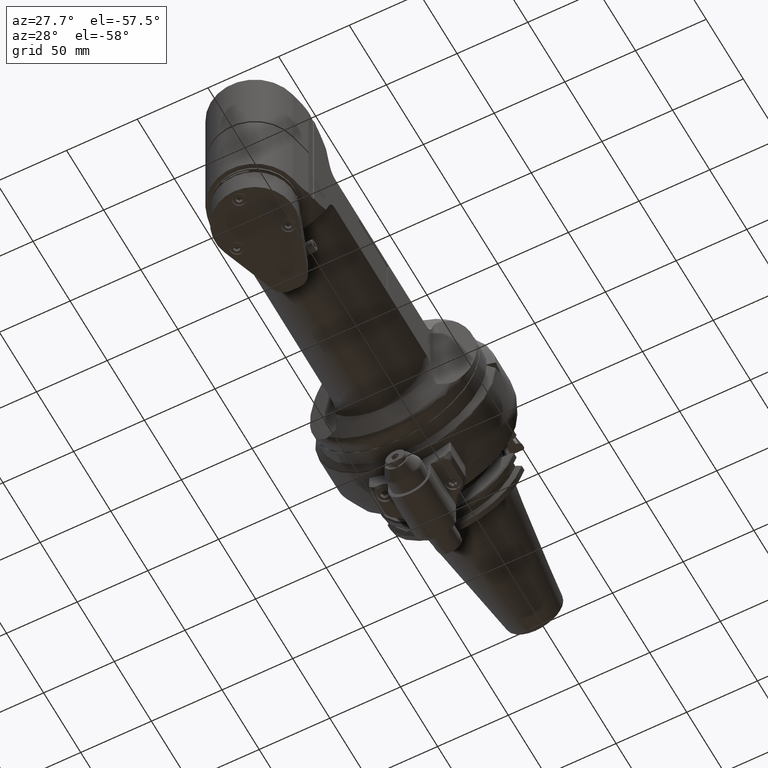
[diagram: clean part render]
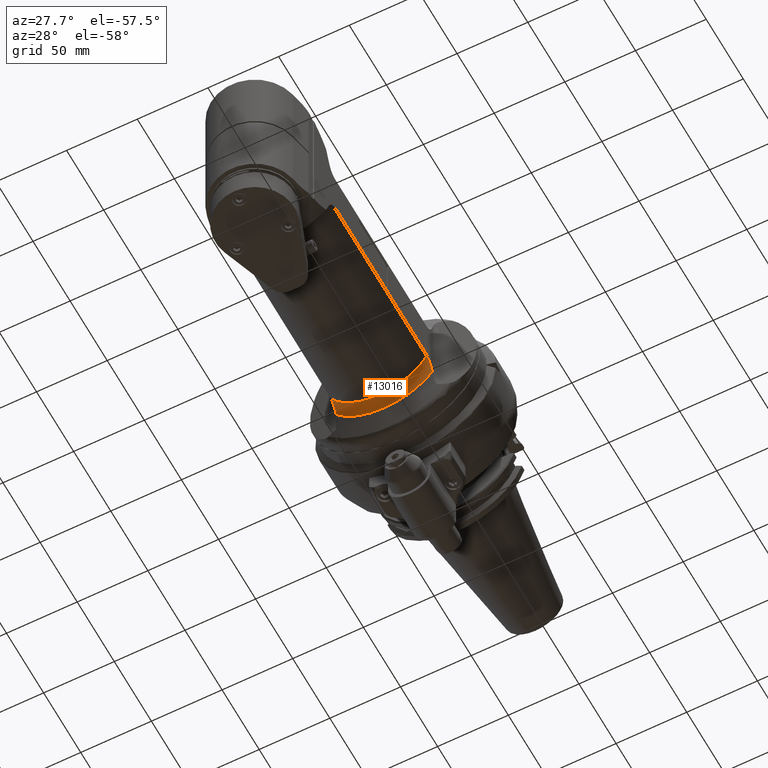
[diagram: same view with one face highlighted and labeled with its STEP entity id]
A machine part, auxiliary view. The second image highlights one B-rep face of the part: STEP entity #13016.
In plain terms, the highlighted toroidal blend (fillet) surface has major radius 46 mm and minor (blend) radius 8 mm.
Its self-contained STEP definition (entity closure, byte-faithful):
#371=B_SPLINE_CURVE_WITH_KNOTS('',3,(#35774,#35775,#35776,#35777,#35778,
#35779,#35780,#35781,#35782,#35783,#35784,#35785,#35786,#35787,#35788,#35789),
 .UNSPECIFIED.,.F.,.F.,(4,2,2,2,2,2,2,4),(1.92235565666624,1.94011054685315,
2.19299586582667,2.4458811848002,2.63271120212388,2.81954121944757,2.94693218780985,
3.05573251034379),.UNSPECIFIED.);
#372=B_SPLINE_CURVE_WITH_KNOTS('',3,(#35994,#35995,#35996,#35997,#35998,
#35999,#36000,#36001,#36002,#36003,#36004,#36005,#36006,#36007,#36008,#36009),
 .UNSPECIFIED.,.F.,.F.,(4,2,2,2,2,2,2,4),(-3.05573251034379,-2.94693218780985,
-2.81954121944757,-2.63271120212388,-2.4458811848002,-2.19299586582667,
-1.94011054685314,-1.92235565666624),.UNSPECIFIED.);
#671=TOROIDAL_SURFACE('',#14230,46.,8.);
#1176=CIRCLE('',#14228,38.);
#1178=CIRCLE('',#14231,42.61905390607);
#1933=FACE_OUTER_BOUND('',#2774,.T.);
#2774=EDGE_LOOP('',(#10478,#10479,#10480,#10481));
#5740=VERTEX_POINT('',#35628);
#5763=VERTEX_POINT('',#35770);
#5820=VERTEX_POINT('',#35986);
#5822=VERTEX_POINT('',#35992);
#7377=EDGE_CURVE('',#5763,#5740,#371,.T.);
#7466=EDGE_CURVE('',#5740,#5820,#1176,.T.);
#7469=EDGE_CURVE('',#5763,#5822,#1178,.T.);
#7470=EDGE_CURVE('',#5820,#5822,#372,.T.);
#10478=ORIENTED_EDGE('',*,*,#7466,.F.);
#10479=ORIENTED_EDGE('',*,*,#7377,.F.);
#10480=ORIENTED_EDGE('',*,*,#7469,.T.);
#10481=ORIENTED_EDGE('',*,*,#7470,.F.);
#13016=ADVANCED_FACE('',(#1933),#671,.F.);
#14228=AXIS2_PLACEMENT_3D('',#35987,#17005,#17006);
#14230=AXIS2_PLACEMENT_3D('',#35991,#17010,#17011);
#14231=AXIS2_PLACEMENT_3D('',#35993,#17012,#17013);
#17005=DIRECTION('center_axis',(1.,0.,0.));
#17006=DIRECTION('ref_axis',(0.,0.44659375653888,-0.894736842105259));
#17010=DIRECTION('center_axis',(-1.,0.,0.));
#17011=DIRECTION('ref_axis',(0.,1.,2.85362011798185E-16));
#17012=DIRECTION('center_axis',(1.,0.,0.));
#17013=DIRECTION('ref_axis',(0.,0.602968169276407,-0.79776524544471));
#35628=CARTESIAN_POINT('',(210.9521198437,16.97056274848,-34.));
#35770=CARTESIAN_POINT('',(203.7016575474,25.69793291004,-34.));
#35774=CARTESIAN_POINT('Ctrl Pts',(203.701657547406,25.6979329100417,-34.));
#35775=CARTESIAN_POINT('Ctrl Pts',(203.717880355221,25.6402351319456,-34.));
#35776=CARTESIAN_POINT('Ctrl Pts',(203.734255450455,25.5829564978224,-34.));
#35777=CARTESIAN_POINT('Ctrl Pts',(203.985917934121,24.7166356546218,-34.));
#35778=CARTESIAN_POINT('Ctrl Pts',(204.295790524545,23.8439416682403,-34.));
#35779=CARTESIAN_POINT('Ctrl Pts',(205.041213079383,22.1555959983674,-34.));
#35780=CARTESIAN_POINT('Ctrl Pts',(205.477048966678,21.3400705673322,-34.));
#35781=CARTESIAN_POINT('Ctrl Pts',(206.270623996535,20.1077689382487,-34.));
#35782=CARTESIAN_POINT('Ctrl Pts',(206.674401664489,19.5553043516449,-34.));
#35783=CARTESIAN_POINT('Ctrl Pts',(207.580207465488,18.5465996865152,-34.));
#35784=CARTESIAN_POINT('Ctrl Pts',(208.083318701176,18.0913327478181,-34.));
#35785=CARTESIAN_POINT('Ctrl Pts',(208.95582872201,17.5118675579488,-34.));
#35786=CARTESIAN_POINT('Ctrl Pts',(209.410012247592,17.2808423077824,-34.));
#35787=CARTESIAN_POINT('Ctrl Pts',(210.160088938658,17.041608064786,-34.));
#35788=CARTESIAN_POINT('Ctrl Pts',(210.58945210192,16.9705627484771,-34.));
#35789=CARTESIAN_POINT('Ctrl Pts',(210.9521198437,16.9705627484771,-34.));
#35986=CARTESIAN_POINT('',(210.9521198437,16.97056274848,34.));
#35987=CARTESIAN_POINT('Origin',(210.9521198437,0.,0.));
#35991=CARTESIAN_POINT('Origin',(210.9521198437,0.,0.));
#35992=CARTESIAN_POINT('',(203.7016575474,25.69793291004,34.));
#35993=CARTESIAN_POINT('Origin',(203.7016575474,0.,0.));
#35994=CARTESIAN_POINT('Ctrl Pts',(210.9521198437,16.9705627484771,34.));
#35995=CARTESIAN_POINT('Ctrl Pts',(210.58945210192,16.9705627484771,34.));
#35996=CARTESIAN_POINT('Ctrl Pts',(210.160088938658,17.041608064786,34.));
#35997=CARTESIAN_POINT('Ctrl Pts',(209.410012247592,17.2808423077824,34.));
#35998=CARTESIAN_POINT('Ctrl Pts',(208.95582872201,17.5118675579488,34.));
#35999=CARTESIAN_POINT('Ctrl Pts',(208.083318701176,18.0913327478181,34.));
#36000=CARTESIAN_POINT('Ctrl Pts',(207.580207465488,18.5465996865152,34.));
#36001=CARTESIAN_POINT('Ctrl Pts',(206.674401664489,19.5553043516449,34.));
#36002=CARTESIAN_POINT('Ctrl Pts',(206.270623996535,20.1077689382487,34.));
#36003=CARTESIAN_POINT('Ctrl Pts',(205.477048966678,21.3400705673322,34.));
#36004=CARTESIAN_POINT('Ctrl Pts',(205.041213079383,22.1555959983674,34.));
#36005=CARTESIAN_POINT('Ctrl Pts',(204.295790524545,23.8439416682403,34.));
#36006=CARTESIAN_POINT('Ctrl Pts',(203.985917934121,24.7166356546218,34.));
#36007=CARTESIAN_POINT('Ctrl Pts',(203.734255450455,25.5829564978224,34.));
#36008=CARTESIAN_POINT('Ctrl Pts',(203.717880355221,25.6402351319456,34.));
#36009=CARTESIAN_POINT('Ctrl Pts',(203.701657547406,25.6979329100417,34.));